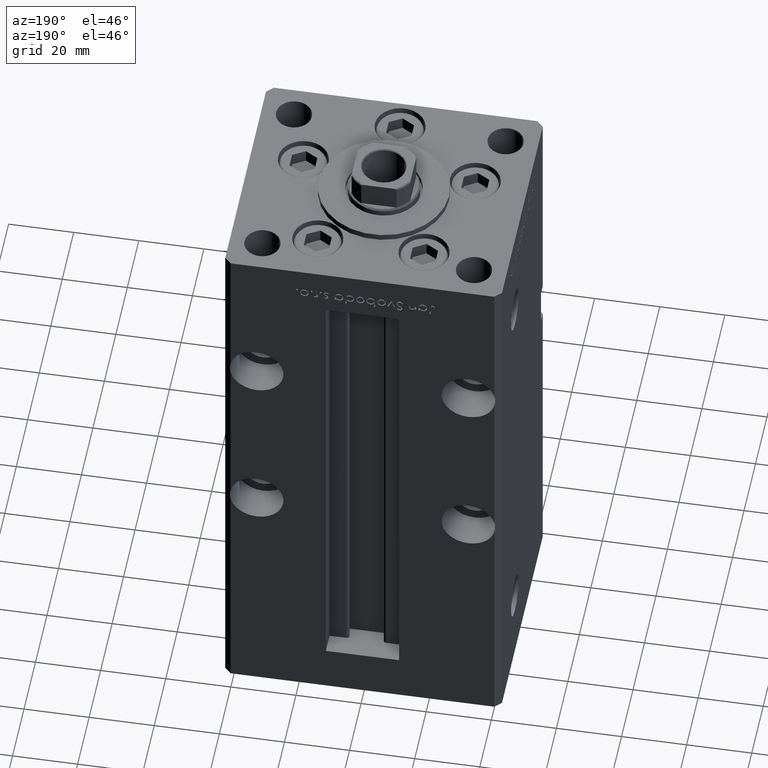
[diagram: clean part render]
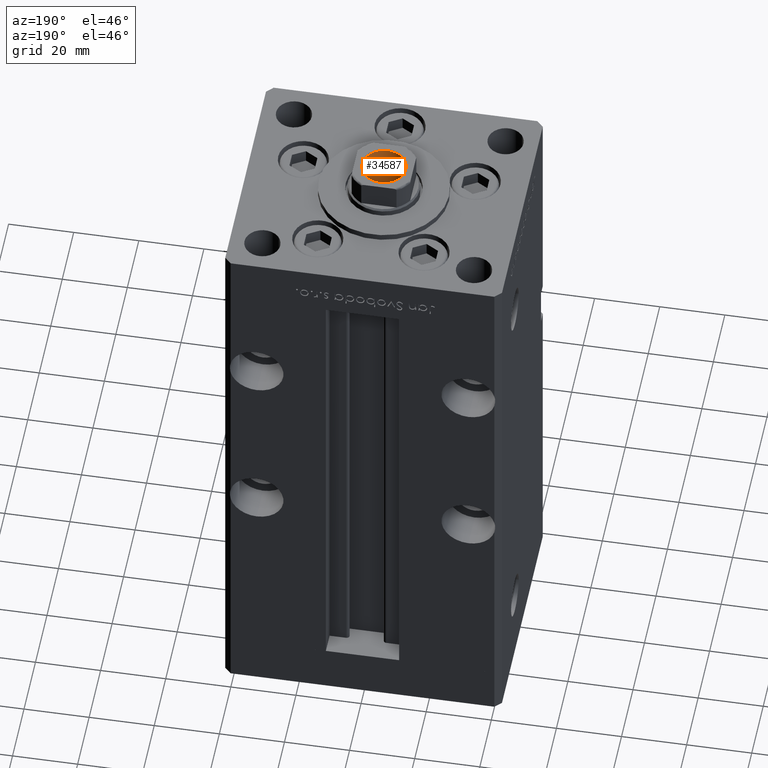
[diagram: same view with one face highlighted and labeled with its STEP entity id]
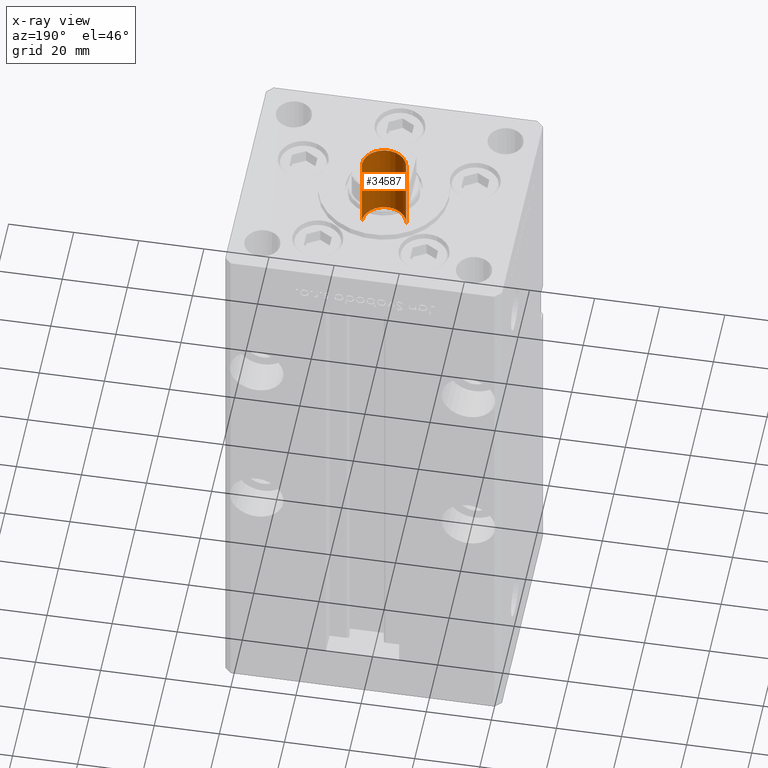
[diagram: x-ray of the same camera — body ghosted, the highlighted face saturated]
A machine part, auxiliary view. The second image highlights one B-rep face of the part: STEP entity #34587.
The next image is the same camera in x-ray: the body ghosted, the highlighted face saturated — about 0% of this face is hidden behind the body in this view.
In plain terms, the highlighted cylindrical surface (edge-blend (fillet) strip) has radius 6.75 mm, axis along (0, 0, 1).
Its self-contained STEP definition (entity closure, byte-faithful):
#1503 = AXIS2_PLACEMENT_3D ( 'NONE', #49772, #16956, #17762 ) ;
#1904 = VECTOR ( 'NONE', #37459, 1000.000000000000000 ) ;
#2735 = DIRECTION ( 'NONE',  ( 1.000000000000000000, 0.000000000000000000, 0.000000000000000000 ) ) ;
#2750 = VERTEX_POINT ( 'NONE', #46733 ) ;
#5822 = CIRCLE ( 'NONE', #12690, 6.749999999999993783 ) ;
#8252 = EDGE_CURVE ( 'NONE', #18041, #2750, #29917, .T. ) ;
#8751 = CIRCLE ( 'NONE', #44856, 6.749999999999995559 ) ;
#9251 = CARTESIAN_POINT ( 'NONE',  ( 0.000000000000000000, 0.000000000000000000, 155.4499999999999886 ) ) ;
#9394 = VERTEX_POINT ( 'NONE', #48529 ) ;
#9494 = EDGE_CURVE ( 'NONE', #2750, #35555, #8751, .T. ) ;
#11989 = EDGE_LOOP ( 'NONE', ( #25317, #26638, #18503, #25416 ) ) ;
#12690 = AXIS2_PLACEMENT_3D ( 'NONE', #23401, #26910, #2735 ) ;
#13794 = DIRECTION ( 'NONE',  ( -0.000000000000000000, -0.000000000000000000, 1.000000000000000000 ) ) ;
#16956 = DIRECTION ( 'NONE',  ( -0.000000000000000000, -0.000000000000000000, 1.000000000000000000 ) ) ;
#17157 = CARTESIAN_POINT ( 'NONE',  ( -6.749999999999993783, 8.266365894244626445E-16, 130.7500000000000000 ) ) ;
#17762 = DIRECTION ( 'NONE',  ( 1.000000000000000000, 0.000000000000000000, 0.000000000000000000 ) ) ;
#18041 = VERTEX_POINT ( 'NONE', #17157 ) ;
#18503 = ORIENTED_EDGE ( 'NONE', *, *, #9494, .T. ) ;
#23401 = CARTESIAN_POINT ( 'NONE',  ( 0.000000000000000000, 0.000000000000000000, 130.7500000000000000 ) ) ;
#25317 = ORIENTED_EDGE ( 'NONE', *, *, #35750, .F. ) ;
#25416 = ORIENTED_EDGE ( 'NONE', *, *, #37377, .F. ) ;
#25565 = CYLINDRICAL_SURFACE ( 'NONE', #1503, 6.749999999999995559 ) ;
#26638 = ORIENTED_EDGE ( 'NONE', *, *, #8252, .T. ) ;
#26910 = DIRECTION ( 'NONE',  ( -0.000000000000000000, -0.000000000000000000, 1.000000000000000000 ) ) ;
#29594 = FACE_OUTER_BOUND ( 'NONE', #11989, .T. ) ;
#29917 = LINE ( 'NONE', #33688, #1904 ) ;
#30179 = LINE ( 'NONE', #47381, #41962 ) ;
#33688 = CARTESIAN_POINT ( 'NONE',  ( -6.749999999999995559, 8.266365894244628417E-16, 155.7500000000000000 ) ) ;
#34587 = ADVANCED_FACE ( 'NONE', ( #29594 ), #25565, .F. ) ;
#35555 = VERTEX_POINT ( 'NONE', #37962 ) ;
#35750 = EDGE_CURVE ( 'NONE', #18041, #9394, #5822, .T. ) ;
#37217 = DIRECTION ( 'NONE',  ( 1.000000000000000000, 0.000000000000000000, 0.000000000000000000 ) ) ;
#37377 = EDGE_CURVE ( 'NONE', #9394, #35555, #30179, .T. ) ;
#37459 = DIRECTION ( 'NONE',  ( -0.000000000000000000, -0.000000000000000000, 1.000000000000000000 ) ) ;
#37962 = CARTESIAN_POINT ( 'NONE',  ( 6.749999999999995559, 0.000000000000000000, 155.4499999999999886 ) ) ;
#41962 = VECTOR ( 'NONE', #13794, 1000.000000000000000 ) ;
#44856 = AXIS2_PLACEMENT_3D ( 'NONE', #9251, #49843, #37217 ) ;
#46733 = CARTESIAN_POINT ( 'NONE',  ( -6.749999999999995559, 8.266365894244628417E-16, 155.4499999999999886 ) ) ;
#47381 = CARTESIAN_POINT ( 'NONE',  ( 6.749999999999995559, 0.000000000000000000, 155.7500000000000000 ) ) ;
#48529 = CARTESIAN_POINT ( 'NONE',  ( 6.749999999999993783, 0.000000000000000000, 130.7500000000000000 ) ) ;
#49772 = CARTESIAN_POINT ( 'NONE',  ( 0.000000000000000000, 0.000000000000000000, 155.7500000000000000 ) ) ;
#49843 = DIRECTION ( 'NONE',  ( 0.000000000000000000, 0.000000000000000000, 1.000000000000000000 ) ) ;